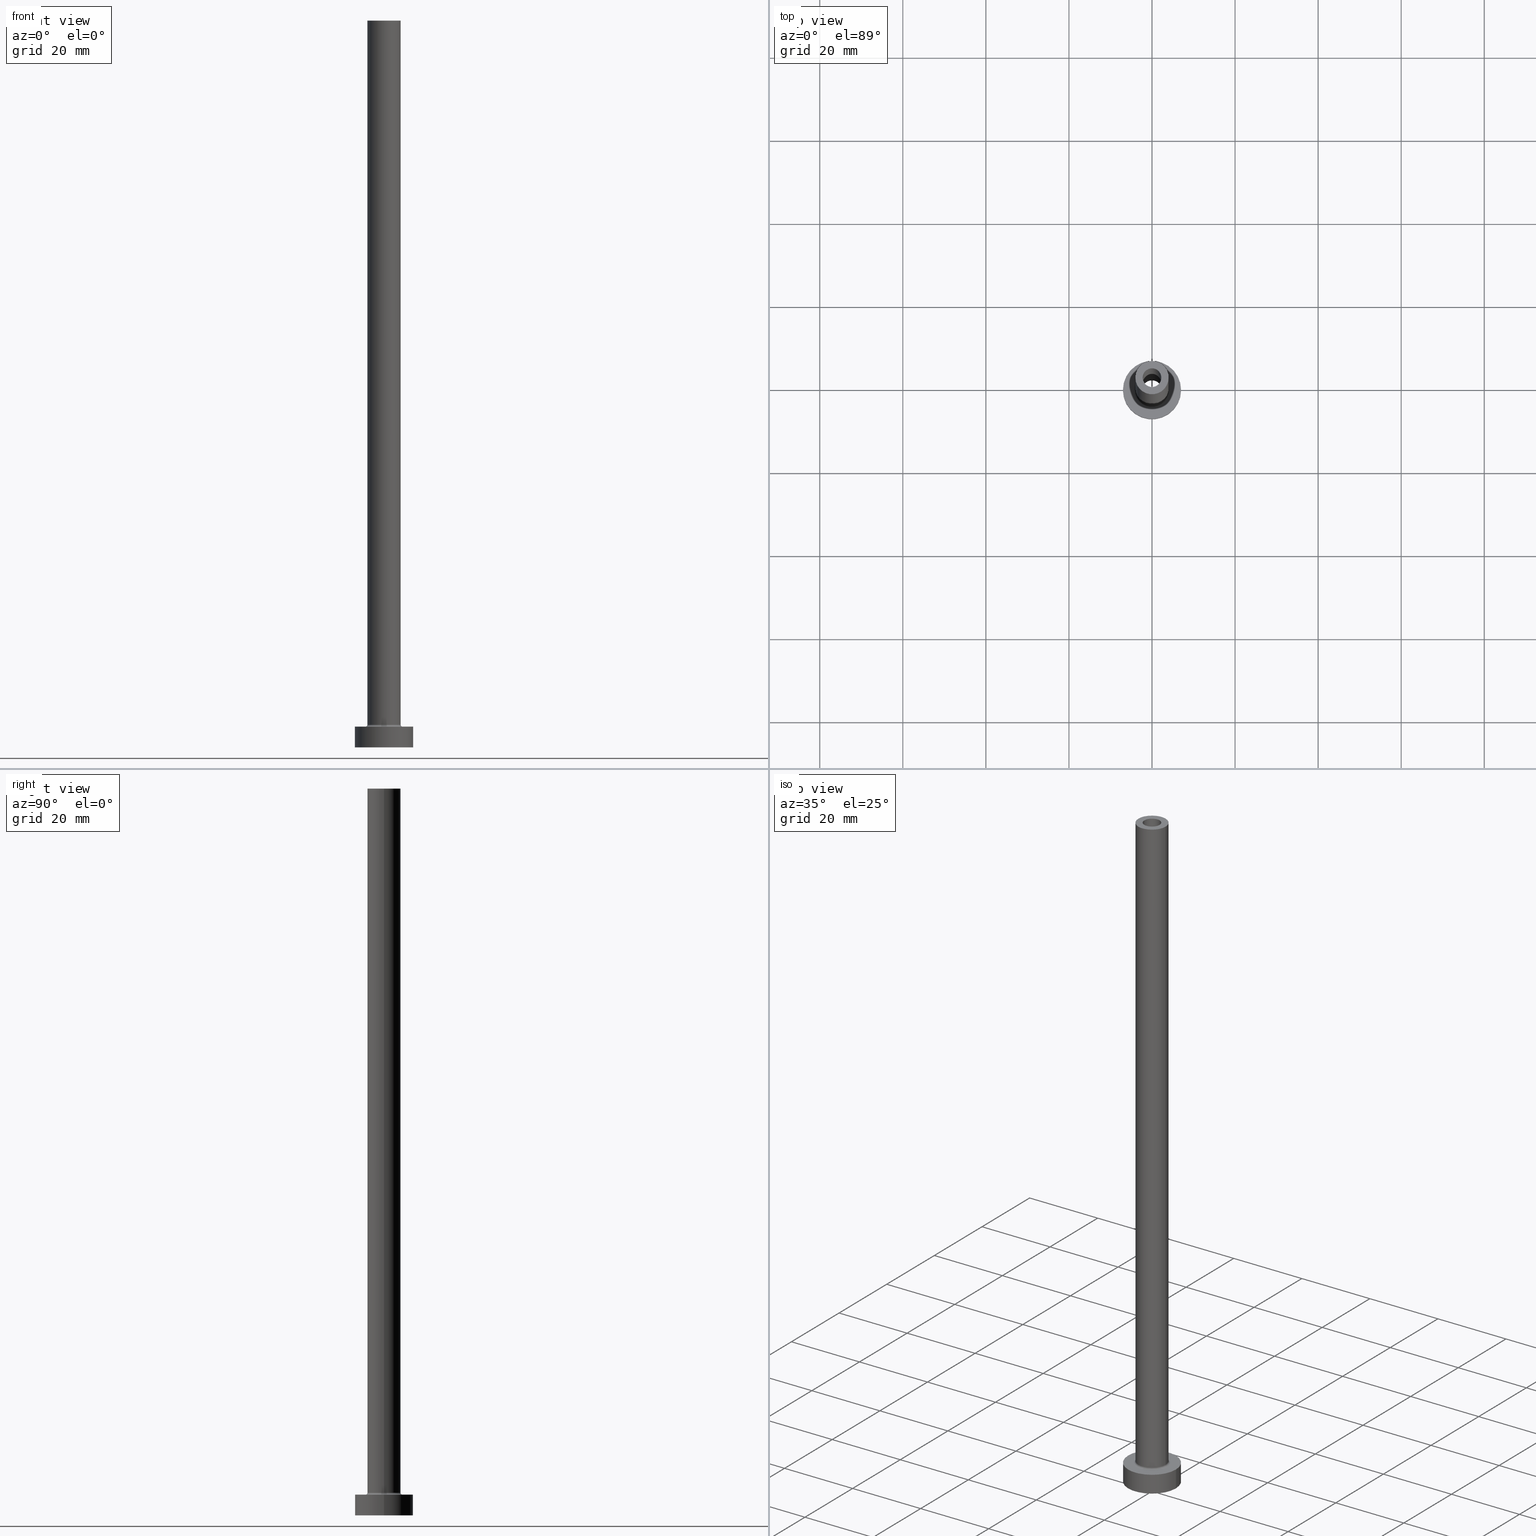
[diagram: canonical four-view strip — front | top / right | iso, engineering-drawing reading convention]
A machine part, canonical four-view strip (front | top / right | iso — engineering-drawing reading convention). The complete STEP part file that produces these views, byte-faithful:
ISO-10303-21;
HEADER;
FILE_DESCRIPTION (( 'STEP AP203' ),
    '1' );
FILE_NAME ('a44e.STEP',
    '2023-02-13T17:23:04',
    ( '' ),
    ( '' ),
    'SwSTEP 2.0',
    'SolidWorks 2019',
    '' );
FILE_SCHEMA (( 'CONFIG_CONTROL_DESIGN' ));
ENDSEC;

DATA;
#1 = MECHANICAL_CONTEXT ( 'NONE', #409, 'mechanical' ) ;
#2 = CYLINDRICAL_SURFACE ( 'NONE', #15, 4.000000000000000000 ) ;
#3 = CALENDAR_DATE ( 2023, 13, 2 ) ;
#4 = CARTESIAN_POINT ( 'NONE',  ( -4.500000000000000888, 5.510910596163088569E-16, 5.000000000000002665 ) ) ;
#5 = EDGE_CURVE ( 'NONE', #182, #85, #26, .T. ) ;
#6 = PERSON_AND_ORGANIZATION_ROLE ( 'classification_officer' ) ;
#7 = CC_DESIGN_APPROVAL ( #201, ( #45 ) ) ;
#8 = AXIS2_PLACEMENT_3D ( 'NONE', #185, #225, #191 ) ;
#9 = EDGE_LOOP ( 'NONE', ( #300, #419 ) ) ;
#10 = CALENDAR_DATE ( 2023, 13, 2 ) ;
#11 = AXIS2_PLACEMENT_3D ( 'NONE', #354, #40, #318 ) ;
#12 = ORIENTED_EDGE ( 'NONE', *, *, #171, .T. ) ;
#13 = EDGE_CURVE ( 'NONE', #155, #182, #458, .T. ) ;
#14 = VERTEX_POINT ( 'NONE', #308 ) ;
#15 = AXIS2_PLACEMENT_3D ( 'NONE', #280, #176, #100 ) ;
#16 = ORIENTED_EDGE ( 'NONE', *, *, #189, .T. ) ;
#17 = DIRECTION ( 'NONE',  ( 0.000000000000000000, 0.000000000000000000, -1.000000000000000000 ) ) ;
#18 = ORIENTED_EDGE ( 'NONE', *, *, #13, .F. ) ;
#19 = CARTESIAN_POINT ( 'NONE',  ( -4.500000000000000888, 5.510910596163089556E-16, 5.500000000000005329 ) ) ;
#20 =( GEOMETRIC_REPRESENTATION_CONTEXT ( 3 ) GLOBAL_UNCERTAINTY_ASSIGNED_CONTEXT ( ( #94 ) ) GLOBAL_UNIT_ASSIGNED_CONTEXT ( ( #228, #84, #47 ) ) REPRESENTATION_CONTEXT ( 'NONE', 'WORKASPACE' ) );
#21 = CARTESIAN_POINT ( 'NONE',  ( 0.000000000000000000, 0.000000000000000000, 5.000000000000000000 ) ) ;
#22 = ORIENTED_EDGE ( 'NONE', *, *, #289, .F. ) ;
#23 = CC_DESIGN_DATE_AND_TIME_ASSIGNMENT ( #319, #360, ( #385 ) ) ;
#24 = CARTESIAN_POINT ( 'NONE',  ( 0.000000000000000000, 0.000000000000000000, 5.500000000000005329 ) ) ;
#25 = DIRECTION ( 'NONE',  ( 0.000000000000000000, 0.000000000000000000, 1.000000000000000000 ) ) ;
#26 = LINE ( 'NONE', #203, #325 ) ;
#27 = DIRECTION ( 'NONE',  ( -0.000000000000000000, -0.000000000000000000, -1.000000000000000000 ) ) ;
#28 = VECTOR ( 'NONE', #291, 1000.000000000000000 ) ;
#29 = CIRCLE ( 'NONE', #286, 4.500000000000000888 ) ;
#30 = CC_DESIGN_PERSON_AND_ORGANIZATION_ASSIGNMENT ( #214, #364, ( #385 ) ) ;
#31 = TOROIDAL_SURFACE ( 'NONE', #122, 4.500000000000000888, 0.5000000000000000000 ) ;
#32 = ORIENTED_EDGE ( 'NONE', *, *, #146, .T. ) ;
#33 = DIRECTION ( 'NONE',  ( 0.000000000000000000, 0.000000000000000000, 1.000000000000000000 ) ) ;
#34 = LINE ( 'NONE', #74, #303 ) ;
#35 = LINE ( 'NONE', #431, #246 ) ;
#36 = APPROVAL_ROLE ( '' ) ;
#37 = APPROVAL_ROLE ( '' ) ;
#38 = CALENDAR_DATE ( 2023, 13, 2 ) ;
#39 = PRODUCT_RELATED_PRODUCT_CATEGORY ( 'detail', '', ( #373 ) ) ;
#40 = DIRECTION ( 'NONE',  ( 0.000000000000000000, 0.000000000000000000, 1.000000000000000000 ) ) ;
#41 = ORIENTED_EDGE ( 'NONE', *, *, #183, .F. ) ;
#42 = PERSON_AND_ORGANIZATION_ROLE ( 'creator' ) ;
#43 = ORIENTED_EDGE ( 'NONE', *, *, #451, .F. ) ;
#44 = APPROVAL_DATE_TIME ( #99, #201 ) ;
#45 = PRODUCT_DEFINITION_FORMATION_WITH_SPECIFIED_SOURCE ( 'LIBOVOLN�', '', #373, .NOT_KNOWN. ) ;
#46 = EDGE_CURVE ( 'NONE', #292, #96, #450, .T. ) ;
#47 =( NAMED_UNIT ( * ) SI_UNIT ( $, .STERADIAN. ) SOLID_ANGLE_UNIT ( ) );
#48 = CARTESIAN_POINT ( 'NONE',  ( -4.000000000000000000, 0.000000000000000000, 175.0000000000000284 ) ) ;
#49 = CIRCLE ( 'NONE', #298, 0.5000000000000004441 ) ;
#50 = ORIENTED_EDGE ( 'NONE', *, *, #437, .T. ) ;
#51 = CARTESIAN_POINT ( 'NONE',  ( 7.000000000000000000, 8.572527594031473190E-16, 5.000000000000000000 ) ) ;
#52 = ORIENTED_EDGE ( 'NONE', *, *, #422, .T. ) ;
#53 = CIRCLE ( 'NONE', #121, 4.500000000000000888 ) ;
#54 = ORIENTED_EDGE ( 'NONE', *, *, #46, .F. ) ;
#55 = FACE_OUTER_BOUND ( 'NONE', #287, .T. ) ;
#56 = AXIS2_PLACEMENT_3D ( 'NONE', #306, #323, #391 ) ;
#57 = ADVANCED_FACE ( 'NONE', ( #411, #376 ), #67, .F. ) ;
#58 = CALENDAR_DATE ( 2023, 13, 2 ) ;
#59 = AXIS2_PLACEMENT_3D ( 'NONE', #199, #25, #161 ) ;
#60 = ORIENTED_EDGE ( 'NONE', *, *, #95, .F. ) ;
#61 = EDGE_CURVE ( 'NONE', #331, #153, #224, .T. ) ;
#62 = AXIS2_PLACEMENT_3D ( 'NONE', #63, #157, #132 ) ;
#63 = CARTESIAN_POINT ( 'NONE',  ( 0.000000000000000000, 0.000000000000000000, 5.000000000000000000 ) ) ;
#64 = DIRECTION ( 'NONE',  ( 0.000000000000000000, 0.000000000000000000, -1.000000000000000000 ) ) ;
#65 = CIRCLE ( 'NONE', #413, 2.250000000000000000 ) ;
#66 = FACE_OUTER_BOUND ( 'NONE', #322, .T. ) ;
#67 = PLANE ( 'NONE',  #177 ) ;
#68 = DIRECTION ( 'NONE',  ( 1.000000000000000000, 0.000000000000000000, 0.000000000000000000 ) ) ;
#69 = ADVANCED_FACE ( 'NONE', ( #172 ), #457, .T. ) ;
#70 = DIRECTION ( 'NONE',  ( -1.000000000000000000, 0.000000000000000000, 0.000000000000000000 ) ) ;
#71 = CIRCLE ( 'NONE', #11, 2.250000000000000000 ) ;
#72 = CIRCLE ( 'NONE', #382, 2.399999999999999911 ) ;
#73 = DIRECTION ( 'NONE',  ( 0.000000000000000000, 0.000000000000000000, 1.000000000000000000 ) ) ;
#74 = CARTESIAN_POINT ( 'NONE',  ( 2.399999999999999911, 2.939152317953647106E-16, 136.7882250993908713 ) ) ;
#75 = APPROVAL_PERSON_ORGANIZATION ( #238, #433, #454 ) ;
#76 = EDGE_CURVE ( 'NONE', #184, #370, #369, .T. ) ;
#77 = APPROVAL_STATUS ( 'not_yet_approved' ) ;
#78 = CARTESIAN_POINT ( 'NONE',  ( 0.000000000000000000, 0.000000000000000000, 5.000000000000000000 ) ) ;
#79 = ORIENTED_EDGE ( 'NONE', *, *, #61, .F. ) ;
#80 = DIRECTION ( 'NONE',  ( 1.000000000000000000, 0.000000000000000000, 0.000000000000000000 ) ) ;
#81 = CIRCLE ( 'NONE', #392, 7.000000000000000000 ) ;
#82 = CARTESIAN_POINT ( 'NONE',  ( 0.000000000000000000, 0.000000000000000000, 0.000000000000000000 ) ) ;
#83 = ADVANCED_FACE ( 'NONE', ( #418 ), #2, .T. ) ;
#84 =( NAMED_UNIT ( * ) PLANE_ANGLE_UNIT ( ) SI_UNIT ( $, .RADIAN. ) );
#85 = VERTEX_POINT ( 'NONE', #174 ) ;
#86 = VECTOR ( 'NONE', #194, 1000.000000000000000 ) ;
#87 = FACE_OUTER_BOUND ( 'NONE', #266, .T. ) ;
#88 = ORIENTED_EDGE ( 'NONE', *, *, #146, .F. ) ;
#89 = ADVANCED_FACE ( 'NONE', ( #276 ), #141, .T. ) ;
#90 = ORIENTED_EDGE ( 'NONE', *, *, #13, .T. ) ;
#91 = AXIS2_PLACEMENT_3D ( 'NONE', #247, #375, #408 ) ;
#92 = ORIENTED_EDGE ( 'NONE', *, *, #226, .T. ) ;
#93 = ORIENTED_EDGE ( 'NONE', *, *, #362, .F. ) ;
#94 = UNCERTAINTY_MEASURE_WITH_UNIT (LENGTH_MEASURE( 1.000000000000000082E-05 ), #228, 'distance_accuracy_value', 'NONE');
#95 = EDGE_CURVE ( 'NONE', #134, #370, #53, .T. ) ;
#96 = VERTEX_POINT ( 'NONE', #389 ) ;
#97 = DESIGN_CONTEXT ( 'detailed design', #120, 'design' ) ;
#98 = CARTESIAN_POINT ( 'NONE',  ( 7.000000000000000000, 8.572527594031473190E-16, 5.000000000000000000 ) ) ;
#99 = DATE_AND_TIME ( #217, #164 ) ;
#100 = DIRECTION ( 'NONE',  ( -1.000000000000000000, 0.000000000000000000, 0.000000000000000000 ) ) ;
#101 = VERTEX_POINT ( 'NONE', #245 ) ;
#102 = CC_DESIGN_SECURITY_CLASSIFICATION ( #395, ( #45 ) ) ;
#103 = CYLINDRICAL_SURFACE ( 'NONE', #111, 2.250000000000000000 ) ;
#104 = AXIS2_PLACEMENT_3D ( 'NONE', #260, #262, #293 ) ;
#105 = DIRECTION ( 'NONE',  ( 1.000000000000000000, 0.000000000000000000, 0.000000000000000000 ) ) ;
#106 = CARTESIAN_POINT ( 'NONE',  ( 0.000000000000000000, 0.000000000000000000, 0.000000000000000000 ) ) ;
#107 = DIRECTION ( 'NONE',  ( 0.000000000000000000, 0.000000000000000000, 1.000000000000000000 ) ) ;
#108 = DIRECTION ( 'NONE',  ( -0.000000000000000000, -0.000000000000000000, -1.000000000000000000 ) ) ;
#109 = ADVANCED_FACE ( 'NONE', ( #216, #282 ), #386, .T. ) ;
#110 = FACE_OUTER_BOUND ( 'NONE', #9, .T. ) ;
#111 = AXIS2_PLACEMENT_3D ( 'NONE', #380, #367, #336 ) ;
#112 = DIRECTION ( 'NONE',  ( 0.000000000000000000, 0.000000000000000000, 1.000000000000000000 ) ) ;
#113 = EDGE_CURVE ( 'NONE', #14, #153, #35, .T. ) ;
#114 = VECTOR ( 'NONE', #269, 1000.000000000000000 ) ;
#115 = AXIS2_PLACEMENT_3D ( 'NONE', #207, #285, #70 ) ;
#116 = ORIENTED_EDGE ( 'NONE', *, *, #341, .T. ) ;
#117 = CC_DESIGN_PERSON_AND_ORGANIZATION_ASSIGNMENT ( #357, #242, ( #373 ) ) ;
#118 = ORIENTED_EDGE ( 'NONE', *, *, #226, .F. ) ;
#119 = LINE ( 'NONE', #442, #28 ) ;
#120 = APPLICATION_CONTEXT ( 'configuration controlled 3d designs of mechanical parts and assemblies' ) ;
#121 = AXIS2_PLACEMENT_3D ( 'NONE', #253, #133, #274 ) ;
#122 = AXIS2_PLACEMENT_3D ( 'NONE', #24, #414, #348 ) ;
#123 = ORIENTED_EDGE ( 'NONE', *, *, #451, .T. ) ;
#124 = CYLINDRICAL_SURFACE ( 'NONE', #263, 4.000000000000000000 ) ;
#125 = ORIENTED_EDGE ( 'NONE', *, *, #355, .T. ) ;
#126 = COORDINATED_UNIVERSAL_TIME_OFFSET ( 1, 0, .AHEAD. ) ;
#127 = DIRECTION ( 'NONE',  ( -1.000000000000000000, 0.000000000000000000, 0.000000000000000000 ) ) ;
#128 = CARTESIAN_POINT ( 'NONE',  ( -7.000000000000000000, 0.000000000000000000, 5.000000000000000000 ) ) ;
#129 = CARTESIAN_POINT ( 'NONE',  ( 0.000000000000000000, 0.000000000000000000, 0.000000000000000000 ) ) ;
#130 = ORIENTED_EDGE ( 'NONE', *, *, #154, .T. ) ;
#131 = ADVANCED_FACE ( 'NONE', ( #170, #110 ), #213, .F. ) ;
#132 = DIRECTION ( 'NONE',  ( 1.000000000000000000, 0.000000000000000000, 0.000000000000000000 ) ) ;
#133 = DIRECTION ( 'NONE',  ( -0.000000000000000000, -0.000000000000000000, -1.000000000000000000 ) ) ;
#134 = VERTEX_POINT ( 'NONE', #4 ) ;
#135 = CARTESIAN_POINT ( 'NONE',  ( 0.000000000000000000, 0.000000000000000000, 175.0000000000000284 ) ) ;
#136 = LOCAL_TIME ( 18, 23, 4.000000000000000000, #435 ) ;
#137 = LOCAL_TIME ( 18, 23, 4.000000000000000000, #281 ) ;
#138 = CARTESIAN_POINT ( 'NONE',  ( 0.000000000000000000, 0.000000000000000000, 5.500000000000005329 ) ) ;
#139 = VERTEX_POINT ( 'NONE', #358 ) ;
#140 = PERSON_AND_ORGANIZATION ( #301, #278 ) ;
#141 = CYLINDRICAL_SURFACE ( 'NONE', #326, 7.000000000000000000 ) ;
#142 = TOROIDAL_SURFACE ( 'NONE', #254, 4.500000000000000888, 0.5000000000000000000 ) ;
#143 = COORDINATED_UNIVERSAL_TIME_OFFSET ( 1, 0, .AHEAD. ) ;
#144 = CLOSED_SHELL ( 'NONE', ( #377, #455, #304, #83, #89, #69, #272, #131, #283, #109, #327, #368, #57, #321 ) ) ;
#145 = DIRECTION ( 'NONE',  ( -0.000000000000000000, -0.000000000000000000, -1.000000000000000000 ) ) ;
#146 = EDGE_CURVE ( 'NONE', #85, #339, #71, .T. ) ;
#147 = ORIENTED_EDGE ( 'NONE', *, *, #362, .T. ) ;
#148 = PERSON_AND_ORGANIZATION ( #301, #278 ) ;
#149 = ORIENTED_EDGE ( 'NONE', *, *, #443, .F. ) ;
#150 = CC_DESIGN_DATE_AND_TIME_ASSIGNMENT ( #402, #314, ( #395 ) ) ;
#151 = EDGE_LOOP ( 'NONE', ( #284, #118, #193, #125 ) ) ;
#152 = CARTESIAN_POINT ( 'NONE',  ( 0.000000000000000000, 0.000000000000000000, 136.7882250993908713 ) ) ;
#153 = VERTEX_POINT ( 'NONE', #459 ) ;
#154 = EDGE_CURVE ( 'NONE', #184, #139, #265, .T. ) ;
#155 = VERTEX_POINT ( 'NONE', #441 ) ;
#156 = DIRECTION ( 'NONE',  ( 1.224646799147353207E-16, 1.000000000000000000, -0.000000000000000000 ) ) ;
#157 = DIRECTION ( 'NONE',  ( 0.000000000000000000, 0.000000000000000000, 1.000000000000000000 ) ) ;
#158 = ORIENTED_EDGE ( 'NONE', *, *, #215, .F. ) ;
#159 = CYLINDRICAL_SURFACE ( 'NONE', #56, 2.399999999999999911 ) ;
#160 = FACE_OUTER_BOUND ( 'NONE', #349, .T. ) ;
#161 = DIRECTION ( 'NONE',  ( 1.000000000000000000, 0.000000000000000000, 0.000000000000000000 ) ) ;
#162 = FACE_BOUND ( 'NONE', #345, .T. ) ;
#163 = CARTESIAN_POINT ( 'NONE',  ( 0.000000000000000000, 0.000000000000000000, 130.0000000000000000 ) ) ;
#164 = LOCAL_TIME ( 18, 23, 4.000000000000000000, #143 ) ;
#165 = EDGE_LOOP ( 'NONE', ( #448, #16, #275, #54 ) ) ;
#166 = DIRECTION ( 'NONE',  ( 0.000000000000000000, 0.000000000000000000, 1.000000000000000000 ) ) ;
#167 = CIRCLE ( 'NONE', #104, 4.000000000000000000 ) ;
#168 = CARTESIAN_POINT ( 'NONE',  ( 4.000000000000000000, 4.898587196589412829E-16, 175.0000000000000284 ) ) ;
#169 = EDGE_LOOP ( 'NONE', ( #407, #50, #130, #340 ) ) ;
#170 = FACE_BOUND ( 'NONE', #400, .T. ) ;
#171 = EDGE_CURVE ( 'NONE', #153, #331, #72, .T. ) ;
#172 = FACE_OUTER_BOUND ( 'NONE', #151, .T. ) ;
#173 = APPROVAL_DATE_TIME ( #250, #220 ) ;
#174 = CARTESIAN_POINT ( 'NONE',  ( 2.250000000000000000, 2.755455298081544285E-16, 130.0000000000000000 ) ) ;
#175 = PERSON_AND_ORGANIZATION_ROLE ( 'design_supplier' ) ;
#176 = DIRECTION ( 'NONE',  ( -0.000000000000000000, -0.000000000000000000, -1.000000000000000000 ) ) ;
#177 = AXIS2_PLACEMENT_3D ( 'NONE', #163, #310, #317 ) ;
#178 = ADVANCED_BREP_SHAPE_REPRESENTATION ( 'a44e', ( #440, #179 ), #20 ) ;
#179 = AXIS2_PLACEMENT_3D ( 'NONE', #328, #112, #80 ) ;
#180 = ORIENTED_EDGE ( 'NONE', *, *, #237, .T. ) ;
#181 = CIRCLE ( 'NONE', #227, 7.000000000000000000 ) ;
#182 = VERTEX_POINT ( 'NONE', #352 ) ;
#183 = EDGE_CURVE ( 'NONE', #436, #331, #34, .T. ) ;
#184 = VERTEX_POINT ( 'NONE', #320 ) ;
#185 = CARTESIAN_POINT ( 'NONE',  ( 0.000000000000000000, 0.000000000000000000, 130.0000000000000000 ) ) ;
#186 = LOCAL_TIME ( 18, 23, 4.000000000000000000, #126 ) ;
#187 = DIRECTION ( 'NONE',  ( 1.000000000000000000, 0.000000000000000000, 0.000000000000000000 ) ) ;
#188 = EDGE_LOOP ( 'NONE', ( #92, #393 ) ) ;
#189 = EDGE_CURVE ( 'NONE', #334, #190, #222, .T. ) ;
#190 = VERTEX_POINT ( 'NONE', #410 ) ;
#191 = DIRECTION ( 'NONE',  ( 1.000000000000000000, 0.000000000000000000, 0.000000000000000000 ) ) ;
#192 = ORIENTED_EDGE ( 'NONE', *, *, #171, .F. ) ;
#193 = ORIENTED_EDGE ( 'NONE', *, *, #46, .T. ) ;
#194 = DIRECTION ( 'NONE',  ( 0.000000000000000000, 0.000000000000000000, -1.000000000000000000 ) ) ;
#195 = EDGE_LOOP ( 'NONE', ( #123, #32 ) ) ;
#196 = ORIENTED_EDGE ( 'NONE', *, *, #422, .F. ) ;
#197 = CARTESIAN_POINT ( 'NONE',  ( 0.000000000000000000, 0.000000000000000000, 0.000000000000000000 ) ) ;
#198 = DIRECTION ( 'NONE',  ( 1.000000000000000000, 0.000000000000000000, 0.000000000000000000 ) ) ;
#199 = CARTESIAN_POINT ( 'NONE',  ( 0.000000000000000000, 0.000000000000000000, 175.0000000000000284 ) ) ;
#200 = AXIS2_PLACEMENT_3D ( 'NONE', #417, #241, #127 ) ;
#201 = APPROVAL ( #77, 'NEUR�EN�' ) ;
#202 = LINE ( 'NONE', #383, #86 ) ;
#203 = CARTESIAN_POINT ( 'NONE',  ( 2.250000000000000000, 2.755455298081544285E-16, 175.0000000000000284 ) ) ;
#204 = APPROVAL_PERSON_ORGANIZATION ( #387, #201, #37 ) ;
#205 = DIRECTION ( 'NONE',  ( 1.000000000000000000, 0.000000000000000000, 0.000000000000000000 ) ) ;
#206 = CIRCLE ( 'NONE', #344, 7.000000000000000000 ) ;
#207 = CARTESIAN_POINT ( 'NONE',  ( 0.000000000000000000, 0.000000000000000000, 5.000000000000000000 ) ) ;
#208 = CC_DESIGN_PERSON_AND_ORGANIZATION_ASSIGNMENT ( #288, #175, ( #45 ) ) ;
#209 = DIRECTION ( 'NONE',  ( 1.000000000000000000, 0.000000000000000000, -0.000000000000000000 ) ) ;
#210 = APPLICATION_PROTOCOL_DEFINITION ( 'international standard', 'config_control_design', 1994, #120 ) ;
#211 = DIRECTION ( 'NONE',  ( 0.000000000000000000, 0.000000000000000000, -1.000000000000000000 ) ) ;
#212 = COORDINATED_UNIVERSAL_TIME_OFFSET ( 1, 0, .AHEAD. ) ;
#213 = PLANE ( 'NONE',  #444 ) ;
#214 = PERSON_AND_ORGANIZATION ( #301, #278 ) ;
#215 = EDGE_CURVE ( 'NONE', #14, #436, #279, .T. ) ;
#216 = FACE_BOUND ( 'NONE', #232, .T. ) ;
#217 = CALENDAR_DATE ( 2023, 13, 2 ) ;
#218 = CARTESIAN_POINT ( 'NONE',  ( 4.500000000000000888, 0.000000000000000000, 5.000000000000002665 ) ) ;
#219 = AXIS2_PLACEMENT_3D ( 'NONE', #273, #239, #456 ) ;
#220 = APPROVAL ( #427, 'NEUR�EN�' ) ;
#221 = ORIENTED_EDGE ( 'NONE', *, *, #5, .T. ) ;
#222 = LINE ( 'NONE', #51, #229 ) ;
#223 = ORIENTED_EDGE ( 'NONE', *, *, #244, .F. ) ;
#224 = CIRCLE ( 'NONE', #256, 2.399999999999999911 ) ;
#225 = DIRECTION ( 'NONE',  ( 0.000000000000000000, 0.000000000000000000, 1.000000000000000000 ) ) ;
#226 = EDGE_CURVE ( 'NONE', #292, #334, #181, .T. ) ;
#227 = AXIS2_PLACEMENT_3D ( 'NONE', #351, #33, #307 ) ;
#228 =( LENGTH_UNIT ( ) NAMED_UNIT ( * ) SI_UNIT ( .MILLI., .METRE. ) );
#229 = VECTOR ( 'NONE', #290, 1000.000000000000000 ) ;
#230 = PRODUCT_DEFINITION_SHAPE ( 'NONE', 'NONE',  #385 ) ;
#231 = DIRECTION ( 'NONE',  ( 1.000000000000000000, 0.000000000000000000, 0.000000000000000000 ) ) ;
#232 = EDGE_LOOP ( 'NONE', ( #18, #236 ) ) ;
#233 = AXIS2_PLACEMENT_3D ( 'NONE', #248, #251, #356 ) ;
#234 = CC_DESIGN_APPROVAL ( #433, ( #395 ) ) ;
#235 = DIRECTION ( 'NONE',  ( 0.000000000000000000, 0.000000000000000000, 1.000000000000000000 ) ) ;
#236 = ORIENTED_EDGE ( 'NONE', *, *, #341, .F. ) ;
#237 = EDGE_CURVE ( 'NONE', #139, #184, #249, .T. ) ;
#238 = PERSON_AND_ORGANIZATION ( #301, #278 ) ;
#239 = DIRECTION ( 'NONE',  ( 0.000000000000000000, 0.000000000000000000, 1.000000000000000000 ) ) ;
#240 = DIRECTION ( 'NONE',  ( -0.000000000000000000, -0.000000000000000000, -1.000000000000000000 ) ) ;
#241 = DIRECTION ( 'NONE',  ( 0.000000000000000000, 0.000000000000000000, -1.000000000000000000 ) ) ;
#242 = PERSON_AND_ORGANIZATION_ROLE ( 'design_owner' ) ;
#243 = DIRECTION ( 'NONE',  ( 0.000000000000000000, 0.000000000000000000, 1.000000000000000000 ) ) ;
#244 = EDGE_CURVE ( 'NONE', #370, #134, #29, .T. ) ;
#245 = CARTESIAN_POINT ( 'NONE',  ( -4.000000000000000000, 0.000000000000000000, 175.0000000000000284 ) ) ;
#246 = VECTOR ( 'NONE', #361, 1000.000000000000000 ) ;
#247 = CARTESIAN_POINT ( 'NONE',  ( 0.000000000000000000, 0.000000000000000000, 175.0000000000000284 ) ) ;
#248 = CARTESIAN_POINT ( 'NONE',  ( 4.500000000000000888, 0.000000000000000000, 5.500000000000005329 ) ) ;
#249 = CIRCLE ( 'NONE', #381, 4.000000000000000000 ) ;
#250 = DATE_AND_TIME ( #10, #137 ) ;
#251 = DIRECTION ( 'NONE',  ( 0.000000000000000000, -1.000000000000000000, 0.000000000000000000 ) ) ;
#252 = APPLICATION_PROTOCOL_DEFINITION ( 'international standard', 'config_control_design', 1994, #409 ) ;
#253 = CARTESIAN_POINT ( 'NONE',  ( 0.000000000000000000, 0.000000000000000000, 5.000000000000000000 ) ) ;
#254 = AXIS2_PLACEMENT_3D ( 'NONE', #350, #107, #187 ) ;
#255 = ORIENTED_EDGE ( 'NONE', *, *, #237, .F. ) ;
#256 = AXIS2_PLACEMENT_3D ( 'NONE', #82, #108, #384 ) ;
#257 = EDGE_CURVE ( 'NONE', #359, #101, #461, .T. ) ;
#258 = EDGE_LOOP ( 'NONE', ( #158, #149 ) ) ;
#259 = EDGE_LOOP ( 'NONE', ( #52, #434 ) ) ;
#260 = CARTESIAN_POINT ( 'NONE',  ( 0.000000000000000000, 0.000000000000000000, 175.0000000000000284 ) ) ;
#261 = ORIENTED_EDGE ( 'NONE', *, *, #113, .T. ) ;
#262 = DIRECTION ( 'NONE',  ( 0.000000000000000000, 0.000000000000000000, 1.000000000000000000 ) ) ;
#263 = AXIS2_PLACEMENT_3D ( 'NONE', #135, #27, #347 ) ;
#264 = APPROVAL_STATUS ( 'not_yet_approved' ) ;
#265 = CIRCLE ( 'NONE', #425, 4.000000000000000000 ) ;
#266 = EDGE_LOOP ( 'NONE', ( #90, #221, #43, #22 ) ) ;
#267 = EDGE_CURVE ( 'NONE', #190, #96, #206, .T. ) ;
#268 = FACE_OUTER_BOUND ( 'NONE', #311, .T. ) ;
#269 = DIRECTION ( 'NONE',  ( -0.000000000000000000, -0.000000000000000000, -1.000000000000000000 ) ) ;
#270 = PLANE ( 'NONE',  #219 ) ;
#271 = SECURITY_CLASSIFICATION_LEVEL ( 'unclassified' ) ;
#272 = ADVANCED_FACE ( 'NONE', ( #162, #316 ), #270, .T. ) ;
#273 = CARTESIAN_POINT ( 'NONE',  ( 0.000000000000000000, 0.000000000000000000, 5.000000000000000000 ) ) ;
#274 = DIRECTION ( 'NONE',  ( 1.000000000000000000, 0.000000000000000000, 0.000000000000000000 ) ) ;
#275 = ORIENTED_EDGE ( 'NONE', *, *, #267, .T. ) ;
#276 = FACE_OUTER_BOUND ( 'NONE', #165, .T. ) ;
#277 = DIRECTION ( 'NONE',  ( 1.000000000000000000, 0.000000000000000000, 0.000000000000000000 ) ) ;
#278 = ORGANIZATION ( 'NEUR�EN�', 'NEUR�EN�', '' ) ;
#279 = CIRCLE ( 'NONE', #299, 2.399999999999999911 ) ;
#280 = CARTESIAN_POINT ( 'NONE',  ( 0.000000000000000000, 0.000000000000000000, 175.0000000000000284 ) ) ;
#281 = COORDINATED_UNIVERSAL_TIME_OFFSET ( 1, 0, .AHEAD. ) ;
#282 = FACE_OUTER_BOUND ( 'NONE', #259, .T. ) ;
#283 = ADVANCED_FACE ( 'NONE', ( #66 ), #124, .T. ) ;
#284 = ORIENTED_EDGE ( 'NONE', *, *, #189, .F. ) ;
#285 = DIRECTION ( 'NONE',  ( -0.000000000000000000, -0.000000000000000000, -1.000000000000000000 ) ) ;
#286 = AXIS2_PLACEMENT_3D ( 'NONE', #21, #305, #105 ) ;
#287 = EDGE_LOOP ( 'NONE', ( #315, #363, #294, #337 ) ) ;
#288 = PERSON_AND_ORGANIZATION ( #301, #278 ) ;
#289 = EDGE_CURVE ( 'NONE', #155, #339, #202, .T. ) ;
#290 = DIRECTION ( 'NONE',  ( -0.000000000000000000, -0.000000000000000000, -1.000000000000000000 ) ) ;
#291 = DIRECTION ( 'NONE',  ( -0.000000000000000000, -0.000000000000000000, -1.000000000000000000 ) ) ;
#292 = VERTEX_POINT ( 'NONE', #342 ) ;
#293 = DIRECTION ( 'NONE',  ( 1.000000000000000000, 0.000000000000000000, 0.000000000000000000 ) ) ;
#294 = ORIENTED_EDGE ( 'NONE', *, *, #61, .T. ) ;
#295 = EDGE_CURVE ( 'NONE', #334, #292, #330, .T. ) ;
#296 = EDGE_LOOP ( 'NONE', ( #41, #335, #261, #12 ) ) ;
#297 = DIRECTION ( 'NONE',  ( 1.000000000000000000, 0.000000000000000000, 0.000000000000000000 ) ) ;
#298 = AXIS2_PLACEMENT_3D ( 'NONE', #19, #156, #312 ) ;
#299 = AXIS2_PLACEMENT_3D ( 'NONE', #421, #453, #198 ) ;
#300 = ORIENTED_EDGE ( 'NONE', *, *, #355, .F. ) ;
#301 = PERSON ( 'NEUR�EN�', 'NEUR�EN�', 'NEUR�EN�', ('NEUR�EN�'), ('NEUR�EN�'), ('NEUR�EN�') ) ;
#302 = CARTESIAN_POINT ( 'NONE',  ( -2.250000000000000000, 0.000000000000000000, 130.0000000000000000 ) ) ;
#303 = VECTOR ( 'NONE', #211, 1000.000000000000000 ) ;
#304 = ADVANCED_FACE ( 'NONE', ( #447 ), #31, .F. ) ;
#305 = DIRECTION ( 'NONE',  ( -0.000000000000000000, -0.000000000000000000, -1.000000000000000000 ) ) ;
#306 = CARTESIAN_POINT ( 'NONE',  ( 0.000000000000000000, 0.000000000000000000, 136.7882250993908713 ) ) ;
#307 = DIRECTION ( 'NONE',  ( 1.000000000000000000, 0.000000000000000000, 0.000000000000000000 ) ) ;
#308 = CARTESIAN_POINT ( 'NONE',  ( -2.399999999999999911, 0.000000000000000000, 130.0000000000000000 ) ) ;
#309 = CARTESIAN_POINT ( 'NONE',  ( 2.399999999999999911, 2.939152317953647106E-16, 0.000000000000000000 ) ) ;
#310 = DIRECTION ( 'NONE',  ( 0.000000000000000000, 0.000000000000000000, 1.000000000000000000 ) ) ;
#311 = EDGE_LOOP ( 'NONE', ( #93, #404, #403, #60 ) ) ;
#312 = DIRECTION ( 'NONE',  ( -1.000000000000000000, 1.224646799147351482E-16, 0.000000000000000000 ) ) ;
#313 = DIRECTION ( 'NONE',  ( 1.000000000000000000, 0.000000000000000000, 0.000000000000000000 ) ) ;
#314 = DATE_TIME_ROLE ( 'classification_date' ) ;
#315 = ORIENTED_EDGE ( 'NONE', *, *, #215, .T. ) ;
#316 = FACE_OUTER_BOUND ( 'NONE', #188, .T. ) ;
#317 = DIRECTION ( 'NONE',  ( 1.000000000000000000, 0.000000000000000000, -0.000000000000000000 ) ) ;
#318 = DIRECTION ( 'NONE',  ( 1.000000000000000000, 0.000000000000000000, 0.000000000000000000 ) ) ;
#319 = DATE_AND_TIME ( #3, #136 ) ;
#320 = CARTESIAN_POINT ( 'NONE',  ( 4.000000000000000000, 4.898587196589412829E-16, 5.500000000000005329 ) ) ;
#321 = ADVANCED_FACE ( 'NONE', ( #160 ), #449, .F. ) ;
#322 = EDGE_LOOP ( 'NONE', ( #415, #196, #390, #180 ) ) ;
#323 = DIRECTION ( 'NONE',  ( 0.000000000000000000, 0.000000000000000000, -1.000000000000000000 ) ) ;
#324 = DIRECTION ( 'NONE',  ( 0.000000000000000000, 0.000000000000000000, 1.000000000000000000 ) ) ;
#325 = VECTOR ( 'NONE', #64, 1000.000000000000000 ) ;
#326 = AXIS2_PLACEMENT_3D ( 'NONE', #78, #145, #423 ) ;
#327 = ADVANCED_FACE ( 'NONE', ( #268 ), #142, .F. ) ;
#328 = CARTESIAN_POINT ( 'NONE',  ( 0.000000000000000000, 0.000000000000000000, 0.000000000000000000 ) ) ;
#329 = AXIS2_PLACEMENT_3D ( 'NONE', #152, #17, #405 ) ;
#330 = CIRCLE ( 'NONE', #62, 7.000000000000000000 ) ;
#331 = VERTEX_POINT ( 'NONE', #309 ) ;
#332 = DIRECTION ( 'NONE',  ( 0.000000000000000000, 0.000000000000000000, 1.000000000000000000 ) ) ;
#333 = DIRECTION ( 'NONE',  ( -0.000000000000000000, -0.000000000000000000, -1.000000000000000000 ) ) ;
#334 = VERTEX_POINT ( 'NONE', #98 ) ;
#335 = ORIENTED_EDGE ( 'NONE', *, *, #443, .T. ) ;
#336 = DIRECTION ( 'NONE',  ( -1.000000000000000000, 0.000000000000000000, 0.000000000000000000 ) ) ;
#337 = ORIENTED_EDGE ( 'NONE', *, *, #113, .F. ) ;
#338 = CARTESIAN_POINT ( 'NONE',  ( 0.000000000000000000, 0.000000000000000000, 0.000000000000000000 ) ) ;
#339 = VERTEX_POINT ( 'NONE', #302 ) ;
#340 = ORIENTED_EDGE ( 'NONE', *, *, #374, .F. ) ;
#341 = EDGE_CURVE ( 'NONE', #182, #155, #65, .T. ) ;
#342 = CARTESIAN_POINT ( 'NONE',  ( -7.000000000000000000, 0.000000000000000000, 5.000000000000000000 ) ) ;
#343 = APPROVAL_PERSON_ORGANIZATION ( #140, #220, #36 ) ;
#344 = AXIS2_PLACEMENT_3D ( 'NONE', #129, #235, #68 ) ;
#345 = EDGE_LOOP ( 'NONE', ( #438, #366 ) ) ;
#346 = FACE_OUTER_BOUND ( 'NONE', #296, .T. ) ;
#347 = DIRECTION ( 'NONE',  ( -1.000000000000000000, 0.000000000000000000, 0.000000000000000000 ) ) ;
#348 = DIRECTION ( 'NONE',  ( 1.000000000000000000, 0.000000000000000000, 0.000000000000000000 ) ) ;
#349 = EDGE_LOOP ( 'NONE', ( #372, #116, #396, #88 ) ) ;
#350 = CARTESIAN_POINT ( 'NONE',  ( 0.000000000000000000, 0.000000000000000000, 5.500000000000005329 ) ) ;
#351 = CARTESIAN_POINT ( 'NONE',  ( 0.000000000000000000, 0.000000000000000000, 5.000000000000000000 ) ) ;
#352 = CARTESIAN_POINT ( 'NONE',  ( 2.250000000000000000, 2.755455298081544285E-16, 175.0000000000000284 ) ) ;
#353 = CARTESIAN_POINT ( 'NONE',  ( 0.000000000000000000, 0.000000000000000000, 175.0000000000000284 ) ) ;
#354 = CARTESIAN_POINT ( 'NONE',  ( 0.000000000000000000, 0.000000000000000000, 130.0000000000000000 ) ) ;
#355 = EDGE_CURVE ( 'NONE', #96, #190, #81, .T. ) ;
#356 = DIRECTION ( 'NONE',  ( 0.000000000000000000, 0.000000000000000000, -1.000000000000000000 ) ) ;
#357 = PERSON_AND_ORGANIZATION ( #301, #278 ) ;
#358 = CARTESIAN_POINT ( 'NONE',  ( -4.000000000000000000, 0.000000000000000000, 5.500000000000005329 ) ) ;
#359 = VERTEX_POINT ( 'NONE', #168 ) ;
#360 = DATE_TIME_ROLE ( 'creation_date' ) ;
#361 = DIRECTION ( 'NONE',  ( 0.000000000000000000, 0.000000000000000000, -1.000000000000000000 ) ) ;
#362 = EDGE_CURVE ( 'NONE', #139, #134, #49, .T. ) ;
#363 = ORIENTED_EDGE ( 'NONE', *, *, #183, .T. ) ;
#364 = PERSON_AND_ORGANIZATION_ROLE ( 'creator' ) ;
#365 = EDGE_LOOP ( 'NONE', ( #255, #147, #223, #429 ) ) ;
#366 = ORIENTED_EDGE ( 'NONE', *, *, #95, .T. ) ;
#367 = DIRECTION ( 'NONE',  ( 0.000000000000000000, 0.000000000000000000, -1.000000000000000000 ) ) ;
#368 = ADVANCED_FACE ( 'NONE', ( #346 ), #159, .F. ) ;
#369 = CIRCLE ( 'NONE', #233, 0.5000000000000004441 ) ;
#370 = VERTEX_POINT ( 'NONE', #218 ) ;
#371 = VECTOR ( 'NONE', #333, 1000.000000000000000 ) ;
#372 = ORIENTED_EDGE ( 'NONE', *, *, #5, .F. ) ;
#373 = PRODUCT ( 'a44e', 'a44e', '', ( #1 ) ) ;
#374 = EDGE_CURVE ( 'NONE', #101, #139, #398, .T. ) ;
#375 = DIRECTION ( 'NONE',  ( 0.000000000000000000, 0.000000000000000000, 1.000000000000000000 ) ) ;
#376 = FACE_OUTER_BOUND ( 'NONE', #258, .T. ) ;
#377 = ADVANCED_FACE ( 'NONE', ( #87 ), #103, .F. ) ;
#378 = SHAPE_DEFINITION_REPRESENTATION ( #230, #178 ) ;
#379 = CARTESIAN_POINT ( 'NONE',  ( 0.000000000000000000, 0.000000000000000000, 5.500000000000005329 ) ) ;
#380 = CARTESIAN_POINT ( 'NONE',  ( 0.000000000000000000, 0.000000000000000000, 175.0000000000000284 ) ) ;
#381 = AXIS2_PLACEMENT_3D ( 'NONE', #379, #243, #313 ) ;
#382 = AXIS2_PLACEMENT_3D ( 'NONE', #338, #240, #297 ) ;
#383 = CARTESIAN_POINT ( 'NONE',  ( -2.250000000000000000, 0.000000000000000000, 175.0000000000000284 ) ) ;
#384 = DIRECTION ( 'NONE',  ( 1.000000000000000000, 0.000000000000000000, 0.000000000000000000 ) ) ;
#385 = PRODUCT_DEFINITION ( 'NEZN�M�', '', #45, #97 ) ;
#386 = PLANE ( 'NONE',  #420 ) ;
#387 = PERSON_AND_ORGANIZATION ( #301, #278 ) ;
#388 = CC_DESIGN_APPROVAL ( #220, ( #385 ) ) ;
#389 = CARTESIAN_POINT ( 'NONE',  ( -7.000000000000000000, 0.000000000000000000, 0.000000000000000000 ) ) ;
#390 = ORIENTED_EDGE ( 'NONE', *, *, #374, .T. ) ;
#391 = DIRECTION ( 'NONE',  ( -1.000000000000000000, 0.000000000000000000, 0.000000000000000000 ) ) ;
#392 = AXIS2_PLACEMENT_3D ( 'NONE', #197, #166, #231 ) ;
#393 = ORIENTED_EDGE ( 'NONE', *, *, #295, .T. ) ;
#394 = CARTESIAN_POINT ( 'NONE',  ( 2.399999999999999911, 2.939152317953647106E-16, 130.0000000000000000 ) ) ;
#395 = SECURITY_CLASSIFICATION ( '', '', #271 ) ;
#396 = ORIENTED_EDGE ( 'NONE', *, *, #289, .T. ) ;
#397 = DIRECTION ( 'NONE',  ( 1.000000000000000000, 0.000000000000000000, 0.000000000000000000 ) ) ;
#398 = LINE ( 'NONE', #48, #371 ) ;
#399 = CC_DESIGN_PERSON_AND_ORGANIZATION_ASSIGNMENT ( #416, #6, ( #395 ) ) ;
#400 = EDGE_LOOP ( 'NONE', ( #192, #79 ) ) ;
#401 = CYLINDRICAL_SURFACE ( 'NONE', #329, 2.399999999999999911 ) ;
#402 = DATE_AND_TIME ( #38, #430 ) ;
#403 = ORIENTED_EDGE ( 'NONE', *, *, #76, .T. ) ;
#404 = ORIENTED_EDGE ( 'NONE', *, *, #154, .F. ) ;
#405 = DIRECTION ( 'NONE',  ( -1.000000000000000000, 0.000000000000000000, 0.000000000000000000 ) ) ;
#406 = CARTESIAN_POINT ( 'NONE',  ( 0.000000000000000000, 0.000000000000000000, 175.0000000000000284 ) ) ;
#407 = ORIENTED_EDGE ( 'NONE', *, *, #257, .F. ) ;
#408 = DIRECTION ( 'NONE',  ( 1.000000000000000000, 0.000000000000000000, 0.000000000000000000 ) ) ;
#409 = APPLICATION_CONTEXT ( 'configuration controlled 3d designs of mechanical parts and assemblies' ) ;
#410 = CARTESIAN_POINT ( 'NONE',  ( 7.000000000000000000, 8.572527594031473190E-16, 0.000000000000000000 ) ) ;
#411 = FACE_BOUND ( 'NONE', #195, .T. ) ;
#412 = CC_DESIGN_PERSON_AND_ORGANIZATION_ASSIGNMENT ( #148, #42, ( #45 ) ) ;
#413 = AXIS2_PLACEMENT_3D ( 'NONE', #406, #445, #205 ) ;
#414 = DIRECTION ( 'NONE',  ( 0.000000000000000000, 0.000000000000000000, 1.000000000000000000 ) ) ;
#415 = ORIENTED_EDGE ( 'NONE', *, *, #437, .F. ) ;
#416 = PERSON_AND_ORGANIZATION ( #301, #278 ) ;
#417 = CARTESIAN_POINT ( 'NONE',  ( 0.000000000000000000, 0.000000000000000000, 175.0000000000000284 ) ) ;
#418 = FACE_OUTER_BOUND ( 'NONE', #169, .T. ) ;
#419 = ORIENTED_EDGE ( 'NONE', *, *, #267, .F. ) ;
#420 = AXIS2_PLACEMENT_3D ( 'NONE', #353, #428, #426 ) ;
#421 = CARTESIAN_POINT ( 'NONE',  ( 0.000000000000000000, 0.000000000000000000, 130.0000000000000000 ) ) ;
#422 = EDGE_CURVE ( 'NONE', #101, #359, #167, .T. ) ;
#423 = DIRECTION ( 'NONE',  ( -1.000000000000000000, 0.000000000000000000, 0.000000000000000000 ) ) ;
#424 = CIRCLE ( 'NONE', #8, 2.250000000000000000 ) ;
#425 = AXIS2_PLACEMENT_3D ( 'NONE', #138, #324, #277 ) ;
#426 = DIRECTION ( 'NONE',  ( 1.000000000000000000, 0.000000000000000000, -0.000000000000000000 ) ) ;
#427 = APPROVAL_STATUS ( 'not_yet_approved' ) ;
#428 = DIRECTION ( 'NONE',  ( 0.000000000000000000, 0.000000000000000000, 1.000000000000000000 ) ) ;
#429 = ORIENTED_EDGE ( 'NONE', *, *, #76, .F. ) ;
#430 = LOCAL_TIME ( 18, 23, 4.000000000000000000, #212 ) ;
#431 = CARTESIAN_POINT ( 'NONE',  ( -2.399999999999999911, 0.000000000000000000, 136.7882250993908713 ) ) ;
#432 = CIRCLE ( 'NONE', #460, 2.399999999999999911 ) ;
#433 = APPROVAL ( #264, 'NEUR�EN�' ) ;
#434 = ORIENTED_EDGE ( 'NONE', *, *, #257, .T. ) ;
#435 = COORDINATED_UNIVERSAL_TIME_OFFSET ( 1, 0, .AHEAD. ) ;
#436 = VERTEX_POINT ( 'NONE', #394 ) ;
#437 = EDGE_CURVE ( 'NONE', #359, #184, #119, .T. ) ;
#438 = ORIENTED_EDGE ( 'NONE', *, *, #244, .T. ) ;
#439 = CARTESIAN_POINT ( 'NONE',  ( 0.000000000000000000, 0.000000000000000000, 130.0000000000000000 ) ) ;
#440 = MANIFOLD_SOLID_BREP ( 'Odebrat vysunut�m4', #144 ) ;
#441 = CARTESIAN_POINT ( 'NONE',  ( -2.250000000000000000, 0.000000000000000000, 175.0000000000000284 ) ) ;
#442 = CARTESIAN_POINT ( 'NONE',  ( 4.000000000000000000, 4.898587196589412829E-16, 175.0000000000000284 ) ) ;
#443 = EDGE_CURVE ( 'NONE', #436, #14, #432, .T. ) ;
#444 = AXIS2_PLACEMENT_3D ( 'NONE', #106, #73, #209 ) ;
#445 = DIRECTION ( 'NONE',  ( 0.000000000000000000, 0.000000000000000000, 1.000000000000000000 ) ) ;
#446 = DATE_AND_TIME ( #58, #186 ) ;
#447 = FACE_OUTER_BOUND ( 'NONE', #365, .T. ) ;
#448 = ORIENTED_EDGE ( 'NONE', *, *, #295, .F. ) ;
#449 = CYLINDRICAL_SURFACE ( 'NONE', #200, 2.250000000000000000 ) ;
#450 = LINE ( 'NONE', #128, #114 ) ;
#451 = EDGE_CURVE ( 'NONE', #339, #85, #424, .T. ) ;
#452 = APPROVAL_DATE_TIME ( #446, #433 ) ;
#453 = DIRECTION ( 'NONE',  ( 0.000000000000000000, 0.000000000000000000, 1.000000000000000000 ) ) ;
#454 = APPROVAL_ROLE ( '' ) ;
#455 = ADVANCED_FACE ( 'NONE', ( #55 ), #401, .F. ) ;
#456 = DIRECTION ( 'NONE',  ( 1.000000000000000000, 0.000000000000000000, -0.000000000000000000 ) ) ;
#457 = CYLINDRICAL_SURFACE ( 'NONE', #115, 7.000000000000000000 ) ;
#458 = CIRCLE ( 'NONE', #59, 2.250000000000000000 ) ;
#459 = CARTESIAN_POINT ( 'NONE',  ( -2.399999999999999911, 0.000000000000000000, 0.000000000000000000 ) ) ;
#460 = AXIS2_PLACEMENT_3D ( 'NONE', #439, #332, #397 ) ;
#461 = CIRCLE ( 'NONE', #91, 4.000000000000000000 ) ;
ENDSEC;
END-ISO-10303-21;
